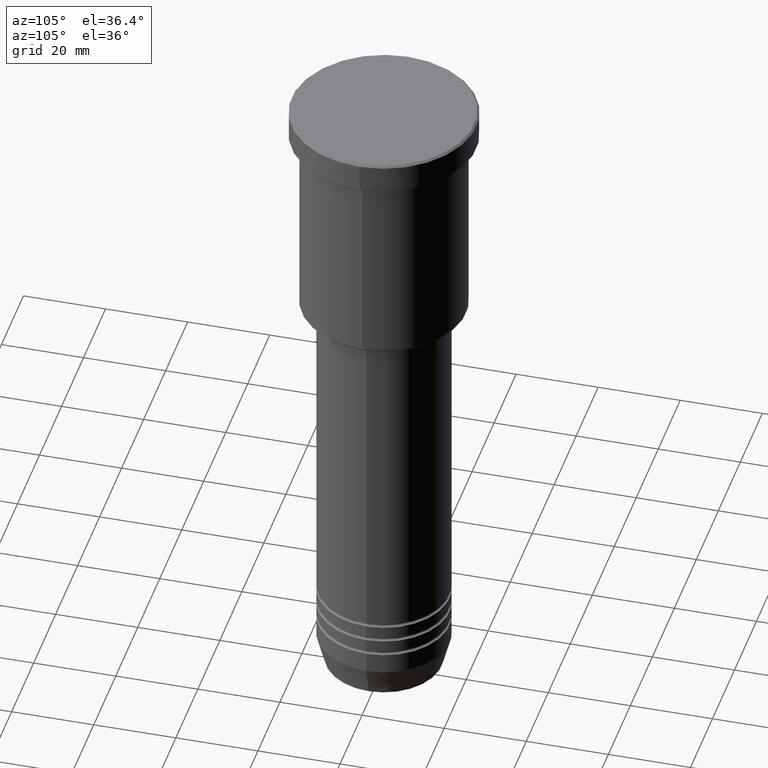
[diagram: clean part render]
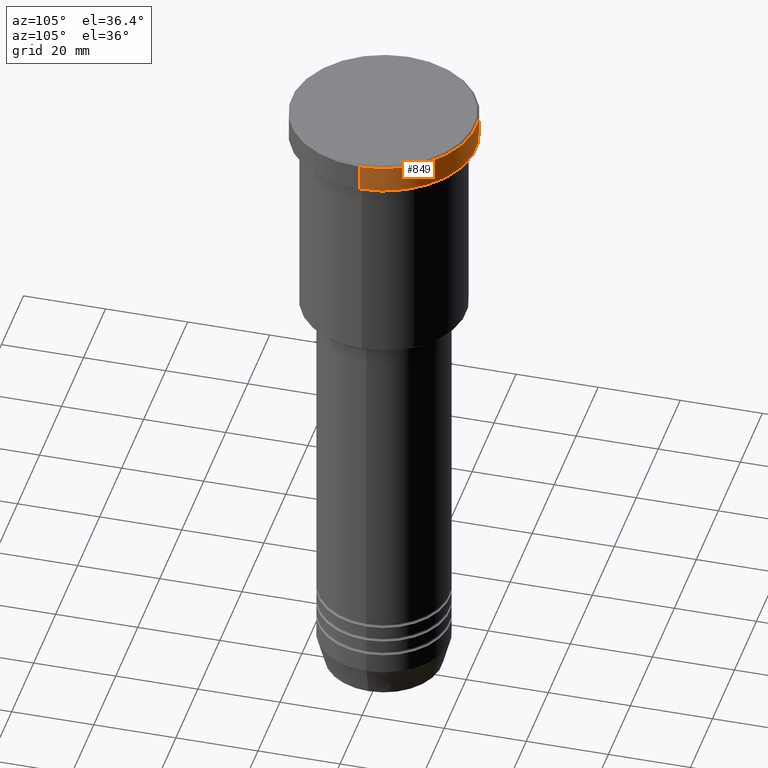
[diagram: same view with one face highlighted and labeled with its STEP entity id]
A machine part, auxiliary view. The second image highlights one B-rep face of the part: STEP entity #849.
In plain terms, the highlighted cylindrical surface (partial cylindrical patch) has radius 22.5 mm, axis along (-0, -0, 1).
Its self-contained STEP definition (entity closure, byte-faithful):
#9 = VERTEX_POINT ( 'NONE', #342 ) ;
#93 = AXIS2_PLACEMENT_3D ( 'NONE', #836, #304, #102 ) ;
#102 = DIRECTION ( 'NONE',  ( 1.000000000000000000, 0.000000000000000000, 0.000000000000000000 ) ) ;
#124 = ORIENTED_EDGE ( 'NONE', *, *, #616, .T. ) ;
#152 = CYLINDRICAL_SURFACE ( 'NONE', #166, 22.50000000000000000 ) ;
#166 = AXIS2_PLACEMENT_3D ( 'NONE', #777, #325, #588 ) ;
#177 = LINE ( 'NONE', #910, #581 ) ;
#189 = VERTEX_POINT ( 'NONE', #737 ) ;
#196 = DIRECTION ( 'NONE',  ( 1.000000000000000000, 0.000000000000000000, 0.000000000000000000 ) ) ;
#225 = CIRCLE ( 'NONE', #356, 22.50000000000000000 ) ;
#304 = DIRECTION ( 'NONE',  ( -0.000000000000000000, -0.000000000000000000, 1.000000000000000000 ) ) ;
#325 = DIRECTION ( 'NONE',  ( -0.000000000000000000, -0.000000000000000000, 1.000000000000000000 ) ) ;
#342 = CARTESIAN_POINT ( 'NONE',  ( -22.50000000000000000, 2.755455298081544778E-15, -6.999999999999995559 ) ) ;
#346 = LINE ( 'NONE', #1072, #698 ) ;
#356 = AXIS2_PLACEMENT_3D ( 'NONE', #641, #370, #196 ) ;
#370 = DIRECTION ( 'NONE',  ( 0.000000000000000000, 0.000000000000000000, -1.000000000000000000 ) ) ;
#420 = FACE_OUTER_BOUND ( 'NONE', #586, .T. ) ;
#496 = DIRECTION ( 'NONE',  ( -0.000000000000000000, -0.000000000000000000, 1.000000000000000000 ) ) ;
#499 = ORIENTED_EDGE ( 'NONE', *, *, #977, .F. ) ;
#534 = EDGE_CURVE ( 'NONE', #9, #189, #346, .T. ) ;
#576 = CARTESIAN_POINT ( 'NONE',  ( 22.50000000000000000, 0.000000000000000000, -6.999999999999995559 ) ) ;
#581 = VECTOR ( 'NONE', #496, 1000.000000000000000 ) ;
#586 = EDGE_LOOP ( 'NONE', ( #753, #927, #124, #499 ) ) ;
#587 = DIRECTION ( 'NONE',  ( -0.000000000000000000, -0.000000000000000000, 1.000000000000000000 ) ) ;
#588 = DIRECTION ( 'NONE',  ( 1.000000000000000000, 0.000000000000000000, 0.000000000000000000 ) ) ;
#616 = EDGE_CURVE ( 'NONE', #189, #755, #225, .T. ) ;
#641 = CARTESIAN_POINT ( 'NONE',  ( 0.000000000000000000, 0.000000000000000000, -0.4999999999999796274 ) ) ;
#673 = CARTESIAN_POINT ( 'NONE',  ( 22.50000000000000000, 0.000000000000000000, -0.4999999999999796274 ) ) ;
#698 = VECTOR ( 'NONE', #587, 1000.000000000000000 ) ;
#737 = CARTESIAN_POINT ( 'NONE',  ( -22.50000000000000000, 2.755455298081544778E-15, -0.4999999999999796274 ) ) ;
#753 = ORIENTED_EDGE ( 'NONE', *, *, #883, .T. ) ;
#755 = VERTEX_POINT ( 'NONE', #673 ) ;
#777 = CARTESIAN_POINT ( 'NONE',  ( 0.000000000000000000, 0.000000000000000000, 0.000000000000000000 ) ) ;
#836 = CARTESIAN_POINT ( 'NONE',  ( 0.000000000000000000, 0.000000000000000000, -6.999999999999995559 ) ) ;
#839 = CIRCLE ( 'NONE', #93, 22.50000000000000000 ) ;
#849 = ADVANCED_FACE ( 'NONE', ( #420 ), #152, .T. ) ;
#883 = EDGE_CURVE ( 'NONE', #1009, #9, #839, .T. ) ;
#910 = CARTESIAN_POINT ( 'NONE',  ( 22.50000000000000000, 0.000000000000000000, 0.000000000000000000 ) ) ;
#927 = ORIENTED_EDGE ( 'NONE', *, *, #534, .T. ) ;
#977 = EDGE_CURVE ( 'NONE', #1009, #755, #177, .T. ) ;
#1009 = VERTEX_POINT ( 'NONE', #576 ) ;
#1072 = CARTESIAN_POINT ( 'NONE',  ( -22.50000000000000000, 2.755455298081544778E-15, 0.000000000000000000 ) ) ;